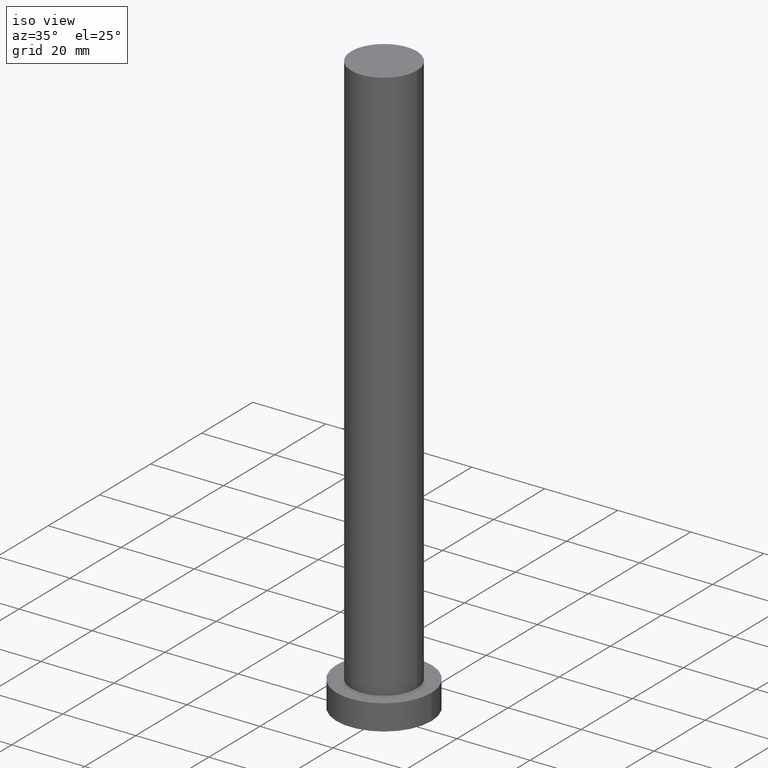
[diagram: clean part render]
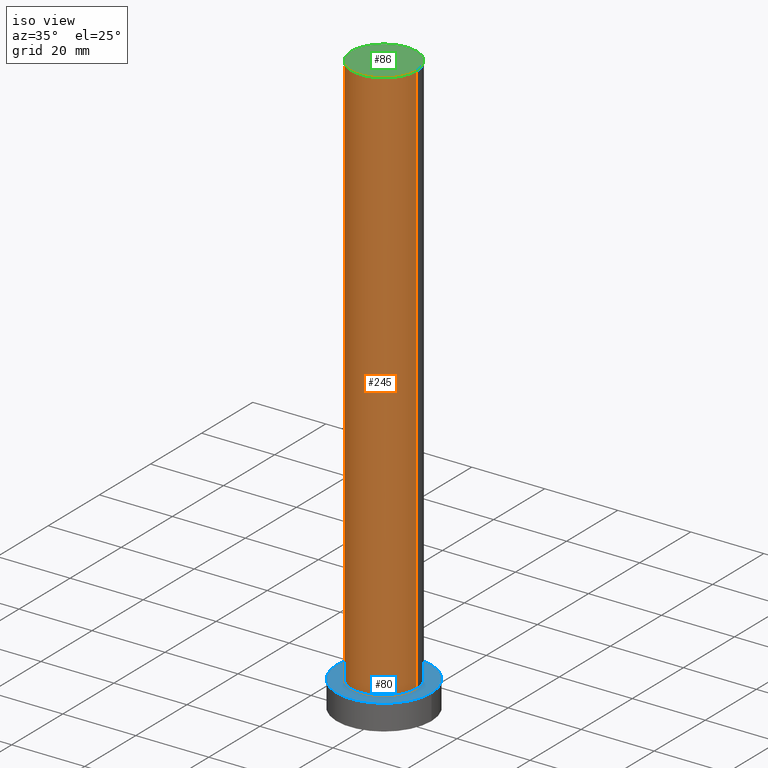
[diagram: same view with three faces highlighted in distinct colors, each labeled with its STEP entity id]
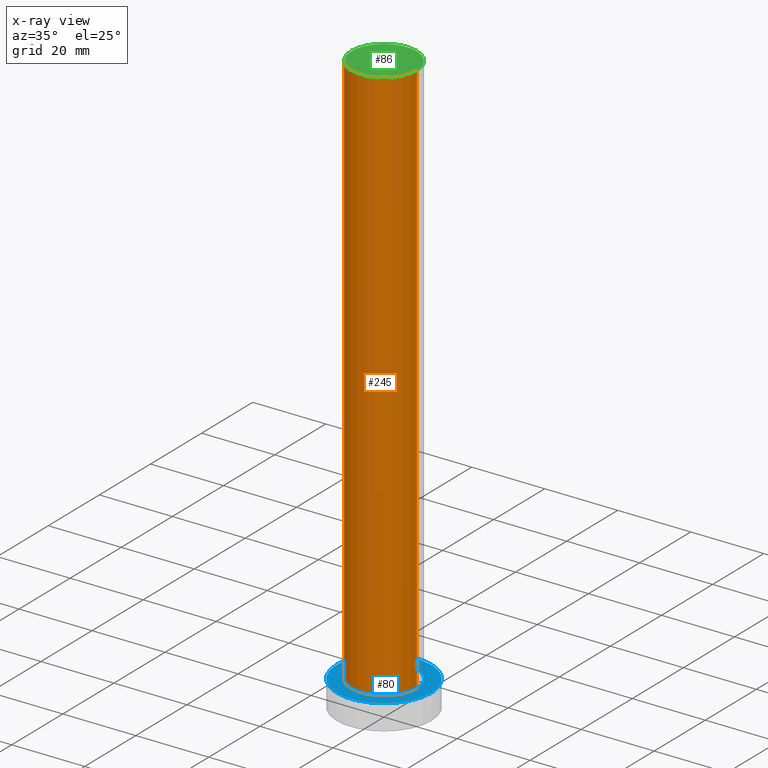
[diagram: x-ray of the same camera — body ghosted, the three highlighted faces saturated]
A machine part, iso view with three faces highlighted in distinct colors.
The next image is the same camera in x-ray (body ghosted, the three faces saturated) — at least one of them is partly hidden behind the body in this view.
Their STEP definitions:

[orange] entity #245 — the highlighted cylindrical surface (partial cylindrical patch) has radius 9 mm, axis along (-0, -0, -1).
#11 = DIRECTION ( 'NONE',  ( -0.000000000000000000, -0.000000000000000000, -1.000000000000000000 ) ) ;
#12 = ORIENTED_EDGE ( 'NONE', *, *, #177, .F. ) ;
#18 = CARTESIAN_POINT ( 'NONE',  ( -9.000000000000000000, 0.000000000000000000, 7.000000000000000000 ) ) ;
#23 = CARTESIAN_POINT ( 'NONE',  ( 9.000000000000000000, 1.102182119232617714E-15, 7.000000000000000000 ) ) ;
#28 = AXIS2_PLACEMENT_3D ( 'NONE', #246, #60, #184 ) ;
#40 = DIRECTION ( 'NONE',  ( 0.000000000000000000, 0.000000000000000000, 1.000000000000000000 ) ) ;
#45 = EDGE_CURVE ( 'NONE', #180, #93, #157, .T. ) ;
#51 = VECTOR ( 'NONE', #126, 1000.000000000000000 ) ;
#55 = ORIENTED_EDGE ( 'NONE', *, *, #45, .T. ) ;
#59 = DIRECTION ( 'NONE',  ( 1.000000000000000000, 0.000000000000000000, 0.000000000000000000 ) ) ;
#60 = DIRECTION ( 'NONE',  ( 0.000000000000000000, 0.000000000000000000, 1.000000000000000000 ) ) ;
#77 = ORIENTED_EDGE ( 'NONE', *, *, #158, .T. ) ;
#81 = DIRECTION ( 'NONE',  ( -1.000000000000000000, 0.000000000000000000, 0.000000000000000000 ) ) ;
#93 = VERTEX_POINT ( 'NONE', #18 ) ;
#94 = CARTESIAN_POINT ( 'NONE',  ( 0.000000000000000000, 0.000000000000000000, 7.000000000000000000 ) ) ;
#95 = AXIS2_PLACEMENT_3D ( 'NONE', #94, #40, #59 ) ;
#96 = CARTESIAN_POINT ( 'NONE',  ( -9.000000000000000000, 0.000000000000000000, 160.0000000000000000 ) ) ;
#116 = DIRECTION ( 'NONE',  ( -0.000000000000000000, -0.000000000000000000, -1.000000000000000000 ) ) ;
#126 = DIRECTION ( 'NONE',  ( -0.000000000000000000, -0.000000000000000000, -1.000000000000000000 ) ) ;
#131 = CARTESIAN_POINT ( 'NONE',  ( 9.000000000000000000, 1.102182119232617714E-15, 160.0000000000000000 ) ) ;
#136 = CIRCLE ( 'NONE', #95, 9.000000000000000000 ) ;
#137 = CARTESIAN_POINT ( 'NONE',  ( 0.000000000000000000, 0.000000000000000000, 160.0000000000000000 ) ) ;
#138 = VERTEX_POINT ( 'NONE', #23 ) ;
#153 = ORIENTED_EDGE ( 'NONE', *, *, #163, .F. ) ;
#157 = LINE ( 'NONE', #96, #247 ) ;
#158 = EDGE_CURVE ( 'NONE', #93, #138, #136, .T. ) ;
#160 = FACE_OUTER_BOUND ( 'NONE', #226, .T. ) ;
#163 = EDGE_CURVE ( 'NONE', #217, #138, #224, .T. ) ;
#169 = CARTESIAN_POINT ( 'NONE',  ( 9.000000000000000000, 1.102182119232617714E-15, 160.0000000000000000 ) ) ;
#177 = EDGE_CURVE ( 'NONE', #180, #217, #200, .T. ) ;
#180 = VERTEX_POINT ( 'NONE', #208 ) ;
#184 = DIRECTION ( 'NONE',  ( 1.000000000000000000, 0.000000000000000000, 0.000000000000000000 ) ) ;
#200 = CIRCLE ( 'NONE', #28, 9.000000000000000000 ) ;
#202 = CYLINDRICAL_SURFACE ( 'NONE', #206, 9.000000000000000000 ) ;
#206 = AXIS2_PLACEMENT_3D ( 'NONE', #137, #11, #81 ) ;
#208 = CARTESIAN_POINT ( 'NONE',  ( -9.000000000000000000, 0.000000000000000000, 160.0000000000000000 ) ) ;
#217 = VERTEX_POINT ( 'NONE', #169 ) ;
#224 = LINE ( 'NONE', #131, #51 ) ;
#226 = EDGE_LOOP ( 'NONE', ( #153, #12, #55, #77 ) ) ;
#245 = ADVANCED_FACE ( 'NONE', ( #160 ), #202, .T. ) ;
#246 = CARTESIAN_POINT ( 'NONE',  ( 0.000000000000000000, 0.000000000000000000, 160.0000000000000000 ) ) ;
#247 = VECTOR ( 'NONE', #116, 1000.000000000000000 ) ;

[blue] entity #80 — the highlighted planar face has unit normal (0, 0, 1).
#6 = EDGE_LOOP ( 'NONE', ( #166, #129 ) ) ;
#13 = CARTESIAN_POINT ( 'NONE',  ( 0.000000000000000000, 0.000000000000000000, 7.000000000000000000 ) ) ;
#16 = AXIS2_PLACEMENT_3D ( 'NONE', #65, #119, #230 ) ;
#18 = CARTESIAN_POINT ( 'NONE',  ( -9.000000000000000000, 0.000000000000000000, 7.000000000000000000 ) ) ;
#23 = CARTESIAN_POINT ( 'NONE',  ( 9.000000000000000000, 1.102182119232617714E-15, 7.000000000000000000 ) ) ;
#25 = CIRCLE ( 'NONE', #175, 13.00000000000000178 ) ;
#27 = AXIS2_PLACEMENT_3D ( 'NONE', #173, #197, #223 ) ;
#38 = CARTESIAN_POINT ( 'NONE',  ( 13.00000000000000178, 1.592040838891559293E-15, 7.000000000000000000 ) ) ;
#40 = DIRECTION ( 'NONE',  ( 0.000000000000000000, 0.000000000000000000, 1.000000000000000000 ) ) ;
#42 = DIRECTION ( 'NONE',  ( 0.000000000000000000, 0.000000000000000000, 1.000000000000000000 ) ) ;
#59 = DIRECTION ( 'NONE',  ( 1.000000000000000000, 0.000000000000000000, 0.000000000000000000 ) ) ;
#65 = CARTESIAN_POINT ( 'NONE',  ( 0.000000000000000000, 0.000000000000000000, 7.000000000000000000 ) ) ;
#80 = ADVANCED_FACE ( 'NONE', ( #239, #111 ), #195, .T. ) ;
#82 = DIRECTION ( 'NONE',  ( 1.000000000000000000, 0.000000000000000000, 0.000000000000000000 ) ) ;
#83 = AXIS2_PLACEMENT_3D ( 'NONE', #161, #42, #122 ) ;
#87 = VERTEX_POINT ( 'NONE', #38 ) ;
#93 = VERTEX_POINT ( 'NONE', #18 ) ;
#94 = CARTESIAN_POINT ( 'NONE',  ( 0.000000000000000000, 0.000000000000000000, 7.000000000000000000 ) ) ;
#95 = AXIS2_PLACEMENT_3D ( 'NONE', #94, #40, #59 ) ;
#111 = FACE_OUTER_BOUND ( 'NONE', #6, .T. ) ;
#119 = DIRECTION ( 'NONE',  ( 0.000000000000000000, 0.000000000000000000, 1.000000000000000000 ) ) ;
#122 = DIRECTION ( 'NONE',  ( 1.000000000000000000, 0.000000000000000000, 0.000000000000000000 ) ) ;
#128 = VERTEX_POINT ( 'NONE', #135 ) ;
#129 = ORIENTED_EDGE ( 'NONE', *, *, #229, .T. ) ;
#135 = CARTESIAN_POINT ( 'NONE',  ( -13.00000000000000178, 0.000000000000000000, 7.000000000000000000 ) ) ;
#136 = CIRCLE ( 'NONE', #95, 9.000000000000000000 ) ;
#138 = VERTEX_POINT ( 'NONE', #23 ) ;
#158 = EDGE_CURVE ( 'NONE', #93, #138, #136, .T. ) ;
#161 = CARTESIAN_POINT ( 'NONE',  ( 0.000000000000000000, 0.000000000000000000, 7.000000000000000000 ) ) ;
#166 = ORIENTED_EDGE ( 'NONE', *, *, #209, .T. ) ;
#168 = ORIENTED_EDGE ( 'NONE', *, *, #203, .F. ) ;
#170 = CIRCLE ( 'NONE', #83, 9.000000000000000000 ) ;
#173 = CARTESIAN_POINT ( 'NONE',  ( 0.000000000000000000, 0.000000000000000000, 7.000000000000000000 ) ) ;
#174 = CIRCLE ( 'NONE', #16, 13.00000000000000178 ) ;
#175 = AXIS2_PLACEMENT_3D ( 'NONE', #13, #225, #82 ) ;
#193 = EDGE_LOOP ( 'NONE', ( #221, #168 ) ) ;
#195 = PLANE ( 'NONE',  #27 ) ;
#197 = DIRECTION ( 'NONE',  ( 0.000000000000000000, 0.000000000000000000, 1.000000000000000000 ) ) ;
#203 = EDGE_CURVE ( 'NONE', #138, #93, #170, .T. ) ;
#209 = EDGE_CURVE ( 'NONE', #128, #87, #25, .T. ) ;
#221 = ORIENTED_EDGE ( 'NONE', *, *, #158, .F. ) ;
#223 = DIRECTION ( 'NONE',  ( 1.000000000000000000, 0.000000000000000000, -0.000000000000000000 ) ) ;
#225 = DIRECTION ( 'NONE',  ( 0.000000000000000000, 0.000000000000000000, 1.000000000000000000 ) ) ;
#229 = EDGE_CURVE ( 'NONE', #87, #128, #174, .T. ) ;
#230 = DIRECTION ( 'NONE',  ( 1.000000000000000000, 0.000000000000000000, 0.000000000000000000 ) ) ;
#239 = FACE_BOUND ( 'NONE', #193, .T. ) ;

[green] entity #86 — the highlighted planar face has unit normal (0, 0, 1).
#2 = DIRECTION ( 'NONE',  ( 0.000000000000000000, 0.000000000000000000, 1.000000000000000000 ) ) ;
#9 = ORIENTED_EDGE ( 'NONE', *, *, #103, .T. ) ;
#28 = AXIS2_PLACEMENT_3D ( 'NONE', #246, #60, #184 ) ;
#39 = CARTESIAN_POINT ( 'NONE',  ( 0.000000000000000000, 0.000000000000000000, 160.0000000000000000 ) ) ;
#49 = AXIS2_PLACEMENT_3D ( 'NONE', #72, #2, #53 ) ;
#53 = DIRECTION ( 'NONE',  ( 1.000000000000000000, 0.000000000000000000, 0.000000000000000000 ) ) ;
#57 = DIRECTION ( 'NONE',  ( 1.000000000000000000, 0.000000000000000000, -0.000000000000000000 ) ) ;
#58 = DIRECTION ( 'NONE',  ( 0.000000000000000000, 0.000000000000000000, 1.000000000000000000 ) ) ;
#60 = DIRECTION ( 'NONE',  ( 0.000000000000000000, 0.000000000000000000, 1.000000000000000000 ) ) ;
#62 = EDGE_LOOP ( 'NONE', ( #215, #9 ) ) ;
#72 = CARTESIAN_POINT ( 'NONE',  ( 0.000000000000000000, 0.000000000000000000, 160.0000000000000000 ) ) ;
#86 = ADVANCED_FACE ( 'NONE', ( #241 ), #253, .T. ) ;
#99 = CIRCLE ( 'NONE', #49, 9.000000000000000000 ) ;
#103 = EDGE_CURVE ( 'NONE', #217, #180, #99, .T. ) ;
#169 = CARTESIAN_POINT ( 'NONE',  ( 9.000000000000000000, 1.102182119232617714E-15, 160.0000000000000000 ) ) ;
#177 = EDGE_CURVE ( 'NONE', #180, #217, #200, .T. ) ;
#180 = VERTEX_POINT ( 'NONE', #208 ) ;
#184 = DIRECTION ( 'NONE',  ( 1.000000000000000000, 0.000000000000000000, 0.000000000000000000 ) ) ;
#200 = CIRCLE ( 'NONE', #28, 9.000000000000000000 ) ;
#208 = CARTESIAN_POINT ( 'NONE',  ( -9.000000000000000000, 0.000000000000000000, 160.0000000000000000 ) ) ;
#213 = AXIS2_PLACEMENT_3D ( 'NONE', #39, #58, #57 ) ;
#215 = ORIENTED_EDGE ( 'NONE', *, *, #177, .T. ) ;
#217 = VERTEX_POINT ( 'NONE', #169 ) ;
#241 = FACE_OUTER_BOUND ( 'NONE', #62, .T. ) ;
#246 = CARTESIAN_POINT ( 'NONE',  ( 0.000000000000000000, 0.000000000000000000, 160.0000000000000000 ) ) ;
#253 = PLANE ( 'NONE',  #213 ) ;